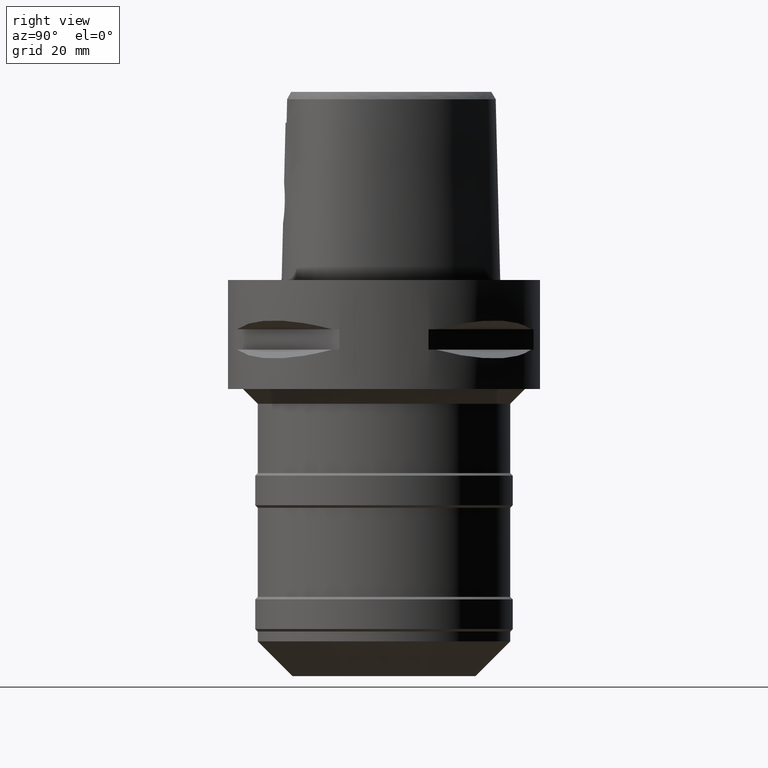
[diagram: clean part render]
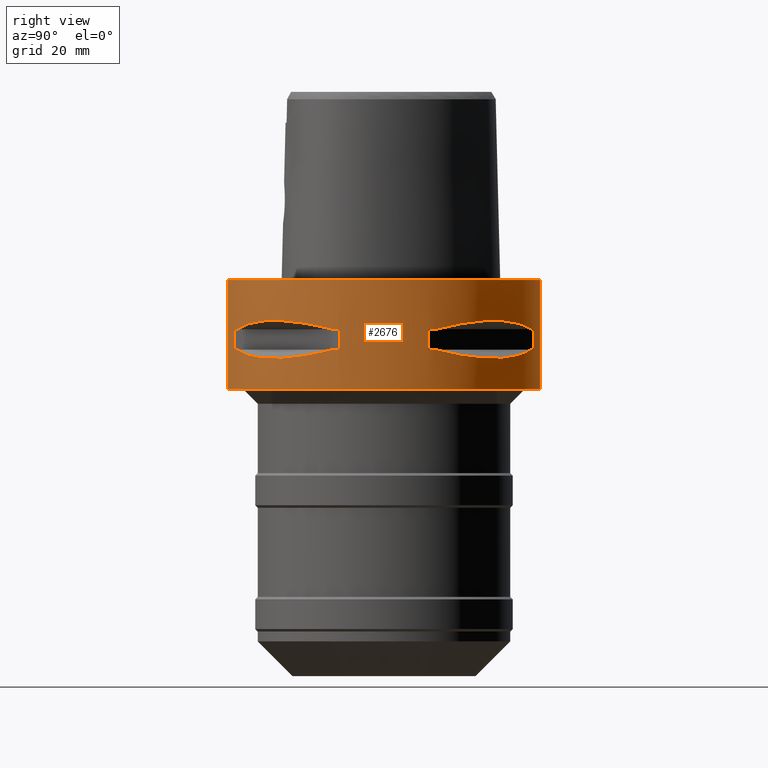
[diagram: same view with one face highlighted and labeled with its STEP entity id]
A machine part, right view. The second image highlights one B-rep face of the part: STEP entity #2676.
In plain terms, the highlighted cylindrical surface (partial cylindrical patch) has radius 31.5 mm, axis along (0, 0, -1).
Its self-contained STEP definition (entity closure, byte-faithful):
#305=CARTESIAN_POINT('',(0.E0,1.273632671113E-14,0.E0));
#306=DIRECTION('',(0.E0,0.E0,-1.E0));
#307=DIRECTION('',(0.E0,1.E0,0.E0));
#308=AXIS2_PLACEMENT_3D('',#305,#306,#307);
#401=DIRECTION('',(0.E0,0.E0,-1.E0));
#402=VECTOR('',#401,2.2E1);
#403=CARTESIAN_POINT('',(0.E0,-3.15E1,0.E0));
#404=LINE('',#403,#402);
#458=DIRECTION('',(0.E0,0.E0,-1.E0));
#459=VECTOR('',#458,2.2E1);
#460=CARTESIAN_POINT('',(0.E0,3.15E1,0.E0));
#461=LINE('',#460,#459);
#465=DIRECTION('',(0.E0,0.E0,-1.E0));
#466=VECTOR('',#465,4.1E0);
#467=CARTESIAN_POINT('',(8.981198972018E0,-3.019251670572E1,-9.95E0));
#468=LINE('',#467,#466);
#472=CARTESIAN_POINT('',(1.044775724750E1,-2.971690375018E1,-1.405E1));
#473=CARTESIAN_POINT('',(1.282388988809E1,-2.888151197365E1,-1.467900482380E1));
#474=CARTESIAN_POINT('',(1.711282138769E1,-2.674739463903E1,-1.555870402292E1));
#475=CARTESIAN_POINT('',(2.244574140438E1,-2.244574140438E1,-1.597971692370E1));
#476=CARTESIAN_POINT('',(2.674739463903E1,-1.711282138769E1,-1.555870402292E1));
#477=CARTESIAN_POINT('',(2.888151197365E1,-1.282388988809E1,-1.467900482380E1));
#478=CARTESIAN_POINT('',(2.971690375018E1,-1.044775724750E1,-1.405E1));
#483=DIRECTION('',(0.E0,0.E0,1.E0));
#484=VECTOR('',#483,4.1E0);
#485=CARTESIAN_POINT('',(3.019251670572E1,-8.981198972018E0,-1.405E1));
#486=LINE('',#485,#484);
#490=DIRECTION('',(0.E0,0.E0,-1.E0));
#491=VECTOR('',#490,4.1E0);
#492=CARTESIAN_POINT('',(3.019251670572E1,8.981198972018E0,-9.95E0));
#493=LINE('',#492,#491);
#497=CARTESIAN_POINT('',(2.971690375018E1,1.044775724750E1,-1.405E1));
#498=CARTESIAN_POINT('',(2.888151197365E1,1.282388988809E1,-1.467900482380E1));
#499=CARTESIAN_POINT('',(2.674739463903E1,1.711282138769E1,-1.555870402292E1));
#500=CARTESIAN_POINT('',(2.244574140438E1,2.244574140438E1,-1.597971692370E1));
#501=CARTESIAN_POINT('',(1.711282138769E1,2.674739463903E1,-1.555870402292E1));
#502=CARTESIAN_POINT('',(1.282388988809E1,2.888151197365E1,-1.467900482380E1));
#503=CARTESIAN_POINT('',(1.044775724750E1,2.971690375018E1,-1.405E1));
#508=DIRECTION('',(0.E0,0.E0,1.E0));
#509=VECTOR('',#508,4.1E0);
#510=CARTESIAN_POINT('',(8.981198972018E0,3.019251670572E1,-1.405E1));
#511=LINE('',#510,#509);
#515=CARTESIAN_POINT('',(0.E0,1.273632671113E-14,-2.2E1));
#516=DIRECTION('',(0.E0,0.E0,1.E0));
#517=DIRECTION('',(0.E0,-1.E0,0.E0));
#518=AXIS2_PLACEMENT_3D('',#515,#516,#517);
#1408=CARTESIAN_POINT('',(1.044775724750E1,-2.971690375018E1,
-9.949999999999E0));
#1409=CARTESIAN_POINT('',(1.282388988809E1,-2.888151197365E1,
-9.320995176198E0));
#1410=CARTESIAN_POINT('',(1.711282138769E1,-2.674739463903E1,
-8.441295977074E0));
#1411=CARTESIAN_POINT('',(2.244574140438E1,-2.244574140438E1,
-8.020283076294E0));
#1412=CARTESIAN_POINT('',(2.674739463903E1,-1.711282138769E1,
-8.441295977074E0));
#1413=CARTESIAN_POINT('',(2.888151197365E1,-1.282388988809E1,
-9.320995176198E0));
#1414=CARTESIAN_POINT('',(2.971690375018E1,-1.044775724750E1,
-9.949999999999E0));
#1419=CARTESIAN_POINT('',(0.E0,1.273632671113E-14,-9.95E0));
#1420=DIRECTION('',(0.E0,0.E0,1.E0));
#1421=DIRECTION('',(9.433937698469E-1,-3.316748332541E-1,0.E0));
#1422=AXIS2_PLACEMENT_3D('',#1419,#1420,#1421);
#1427=CARTESIAN_POINT('',(0.E0,1.273632671113E-14,-9.95E0));
#1428=DIRECTION('',(0.E0,0.E0,1.E0));
#1429=DIRECTION('',(2.851174276832E-1,-9.584925938323E-1,0.E0));
#1430=AXIS2_PLACEMENT_3D('',#1427,#1428,#1429);
#1449=CARTESIAN_POINT('',(0.E0,1.273632671113E-14,-1.405E1));
#1450=DIRECTION('',(0.E0,0.E0,-1.E0));
#1451=DIRECTION('',(9.584925938323E-1,-2.851174276832E-1,0.E0));
#1452=AXIS2_PLACEMENT_3D('',#1449,#1450,#1451);
#1457=CARTESIAN_POINT('',(0.E0,1.273632671113E-14,-1.405E1));
#1458=DIRECTION('',(0.E0,0.E0,-1.E0));
#1459=DIRECTION('',(3.316748332541E-1,-9.433937698469E-1,0.E0));
#1460=AXIS2_PLACEMENT_3D('',#1457,#1458,#1459);
#1479=CARTESIAN_POINT('',(2.971690375018E1,1.044775724750E1,-9.949999999999E0));
#1480=CARTESIAN_POINT('',(2.888151197365E1,1.282388988809E1,-9.320995176198E0));
#1481=CARTESIAN_POINT('',(2.674739463903E1,1.711282138769E1,-8.441295977074E0));
#1482=CARTESIAN_POINT('',(2.244574140438E1,2.244574140438E1,-8.020283076294E0));
#1483=CARTESIAN_POINT('',(1.711282138769E1,2.674739463903E1,-8.441295977074E0));
#1484=CARTESIAN_POINT('',(1.282388988809E1,2.888151197365E1,-9.320995176198E0));
#1485=CARTESIAN_POINT('',(1.044775724750E1,2.971690375018E1,-9.949999999999E0));
#1490=CARTESIAN_POINT('',(0.E0,1.273632671113E-14,-9.95E0));
#1491=DIRECTION('',(0.E0,0.E0,1.E0));
#1492=DIRECTION('',(3.316748332541E-1,9.433937698469E-1,0.E0));
#1493=AXIS2_PLACEMENT_3D('',#1490,#1491,#1492);
#1498=CARTESIAN_POINT('',(0.E0,1.273632671113E-14,-9.95E0));
#1499=DIRECTION('',(0.E0,0.E0,1.E0));
#1500=DIRECTION('',(9.584925938323E-1,2.851174276832E-1,0.E0));
#1501=AXIS2_PLACEMENT_3D('',#1498,#1499,#1500);
#1520=CARTESIAN_POINT('',(0.E0,1.273632671113E-14,-1.405E1));
#1521=DIRECTION('',(0.E0,0.E0,-1.E0));
#1522=DIRECTION('',(2.851174276832E-1,9.584925938323E-1,0.E0));
#1523=AXIS2_PLACEMENT_3D('',#1520,#1521,#1522);
#1528=CARTESIAN_POINT('',(0.E0,1.273632671113E-14,-1.405E1));
#1529=DIRECTION('',(0.E0,0.E0,-1.E0));
#1530=DIRECTION('',(9.433937698469E-1,3.316748332541E-1,0.E0));
#1531=AXIS2_PLACEMENT_3D('',#1528,#1529,#1530);
#1718=CARTESIAN_POINT('',(0.E0,-3.15E1,0.E0));
#1719=CARTESIAN_POINT('',(0.E0,3.15E1,0.E0));
#1720=VERTEX_POINT('',#1718);
#1721=VERTEX_POINT('',#1719);
#1722=CARTESIAN_POINT('',(0.E0,3.15E1,-2.2E1));
#1723=VERTEX_POINT('',#1722);
#1724=CARTESIAN_POINT('',(0.E0,-3.15E1,-2.2E1));
#1725=VERTEX_POINT('',#1724);
#1752=VERTEX_POINT('',#1408);
#1753=VERTEX_POINT('',#1414);
#1754=CARTESIAN_POINT('',(8.981198972020E0,-3.019251670572E1,-9.95E0));
#1755=VERTEX_POINT('',#1754);
#1756=CARTESIAN_POINT('',(8.981198972018E0,-3.019251670572E1,-1.405E1));
#1757=VERTEX_POINT('',#1756);
#1758=CARTESIAN_POINT('',(1.044775724750E1,-2.971690375018E1,-1.405E1));
#1759=VERTEX_POINT('',#1758);
#1760=VERTEX_POINT('',#478);
#1761=CARTESIAN_POINT('',(3.019251670572E1,-8.981198972020E0,-1.405E1));
#1762=VERTEX_POINT('',#1761);
#1763=CARTESIAN_POINT('',(3.019251670572E1,-8.981198972018E0,-9.95E0));
#1764=VERTEX_POINT('',#1763);
#1765=VERTEX_POINT('',#1479);
#1766=VERTEX_POINT('',#1485);
#1767=CARTESIAN_POINT('',(3.019251670572E1,8.981198972020E0,-9.95E0));
#1768=VERTEX_POINT('',#1767);
#1769=CARTESIAN_POINT('',(3.019251670572E1,8.981198972018E0,-1.405E1));
#1770=VERTEX_POINT('',#1769);
#1771=CARTESIAN_POINT('',(2.971690375018E1,1.044775724750E1,-1.405E1));
#1772=VERTEX_POINT('',#1771);
#1773=VERTEX_POINT('',#503);
#1774=CARTESIAN_POINT('',(8.981198972020E0,3.019251670572E1,-1.405E1));
#1775=VERTEX_POINT('',#1774);
#1776=CARTESIAN_POINT('',(8.981198972018E0,3.019251670572E1,-9.95E0));
#1777=VERTEX_POINT('',#1776);
#2628=CARTESIAN_POINT('',(0.E0,1.273632671113E-14,4.E0));
#2629=DIRECTION('',(0.E0,0.E0,-1.E0));
#2630=DIRECTION('',(0.E0,-1.E0,0.E0));
#2631=AXIS2_PLACEMENT_3D('',#2628,#2629,#2630);
#2632=CYLINDRICAL_SURFACE('',#2631,3.15E1);
#2633=ORIENTED_EDGE('',*,*,#2582,.T.);
#2635=ORIENTED_EDGE('',*,*,#2634,.F.);
#2636=ORIENTED_EDGE('',*,*,#2585,.F.);
#2637=ORIENTED_EDGE('',*,*,#2567,.F.);
#2638=EDGE_LOOP('',(#2633,#2635,#2636,#2637));
#2639=FACE_OUTER_BOUND('',#2638,.F.);
#2641=ORIENTED_EDGE('',*,*,#2640,.F.);
#2643=ORIENTED_EDGE('',*,*,#2642,.F.);
#2645=ORIENTED_EDGE('',*,*,#2644,.T.);
#2647=ORIENTED_EDGE('',*,*,#2646,.F.);
#2649=ORIENTED_EDGE('',*,*,#2648,.T.);
#2651=ORIENTED_EDGE('',*,*,#2650,.F.);
#2653=ORIENTED_EDGE('',*,*,#2652,.T.);
#2655=ORIENTED_EDGE('',*,*,#2654,.F.);
#2656=EDGE_LOOP('',(#2641,#2643,#2645,#2647,#2649,#2651,#2653,#2655));
#2657=FACE_BOUND('',#2656,.F.);
#2659=ORIENTED_EDGE('',*,*,#2658,.F.);
#2661=ORIENTED_EDGE('',*,*,#2660,.F.);
#2663=ORIENTED_EDGE('',*,*,#2662,.T.);
#2665=ORIENTED_EDGE('',*,*,#2664,.F.);
#2667=ORIENTED_EDGE('',*,*,#2666,.T.);
#2669=ORIENTED_EDGE('',*,*,#2668,.F.);
#2671=ORIENTED_EDGE('',*,*,#2670,.T.);
#2673=ORIENTED_EDGE('',*,*,#2672,.F.);
#2674=EDGE_LOOP('',(#2659,#2661,#2663,#2665,#2667,#2669,#2671,#2673));
#2675=FACE_BOUND('',#2674,.F.);
#309=CIRCLE('',#308,3.15E1);
#479=B_SPLINE_CURVE_WITH_KNOTS('',3,(#472,#473,#474,#475,#476,#477,#478),
.UNSPECIFIED.,.F.,.F.,(4,1,1,1,4),(0.E0,2.5E-1,5.E-1,7.5E-1,1.E0),
.UNSPECIFIED.);
#504=B_SPLINE_CURVE_WITH_KNOTS('',3,(#497,#498,#499,#500,#501,#502,#503),
.UNSPECIFIED.,.F.,.F.,(4,1,1,1,4),(0.E0,2.5E-1,5.E-1,7.5E-1,1.E0),
.UNSPECIFIED.);
#519=CIRCLE('',#518,3.15E1);
#1415=B_SPLINE_CURVE_WITH_KNOTS('',3,(#1408,#1409,#1410,#1411,#1412,#1413,
#1414),.UNSPECIFIED.,.F.,.F.,(4,1,1,1,4),(0.E0,2.5E-1,5.E-1,7.5E-1,1.E0),
.UNSPECIFIED.);
#1423=CIRCLE('',#1422,3.15E1);
#1431=CIRCLE('',#1430,3.15E1);
#1453=CIRCLE('',#1452,3.15E1);
#1461=CIRCLE('',#1460,3.15E1);
#1486=B_SPLINE_CURVE_WITH_KNOTS('',3,(#1479,#1480,#1481,#1482,#1483,#1484,
#1485),.UNSPECIFIED.,.F.,.F.,(4,1,1,1,4),(0.E0,2.5E-1,5.E-1,7.5E-1,1.E0),
.UNSPECIFIED.);
#1494=CIRCLE('',#1493,3.15E1);
#1502=CIRCLE('',#1501,3.15E1);
#1524=CIRCLE('',#1523,3.15E1);
#1532=CIRCLE('',#1531,3.15E1);
#2567=EDGE_CURVE('',#1721,#1720,#309,.T.);
#2582=EDGE_CURVE('',#1721,#1723,#461,.T.);
#2585=EDGE_CURVE('',#1720,#1725,#404,.T.);
#2634=EDGE_CURVE('',#1725,#1723,#519,.T.);
#2640=EDGE_CURVE('',#1752,#1753,#1415,.T.);
#2642=EDGE_CURVE('',#1755,#1752,#1431,.T.);
#2644=EDGE_CURVE('',#1755,#1757,#468,.T.);
#2646=EDGE_CURVE('',#1759,#1757,#1461,.T.);
#2648=EDGE_CURVE('',#1759,#1760,#479,.T.);
#2650=EDGE_CURVE('',#1762,#1760,#1453,.T.);
#2652=EDGE_CURVE('',#1762,#1764,#486,.T.);
#2654=EDGE_CURVE('',#1753,#1764,#1423,.T.);
#2658=EDGE_CURVE('',#1765,#1766,#1486,.T.);
#2660=EDGE_CURVE('',#1768,#1765,#1502,.T.);
#2662=EDGE_CURVE('',#1768,#1770,#493,.T.);
#2664=EDGE_CURVE('',#1772,#1770,#1532,.T.);
#2666=EDGE_CURVE('',#1772,#1773,#504,.T.);
#2668=EDGE_CURVE('',#1775,#1773,#1524,.T.);
#2670=EDGE_CURVE('',#1775,#1777,#511,.T.);
#2672=EDGE_CURVE('',#1766,#1777,#1494,.T.);
#2676=ADVANCED_FACE('',(#2639,#2657,#2675),#2632,.T.);